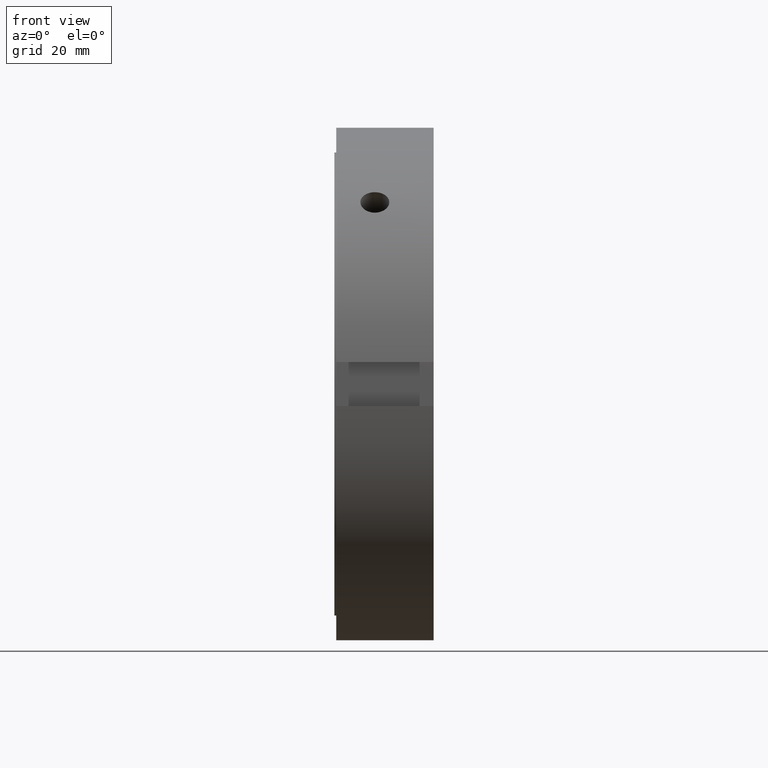
[diagram: clean part render]
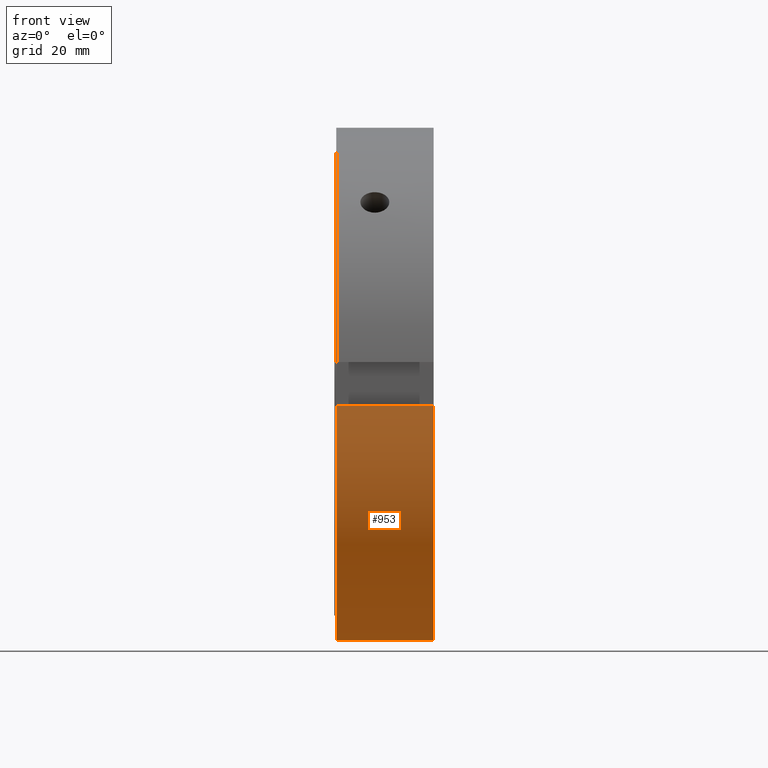
[diagram: same view with one face highlighted and labeled with its STEP entity id]
A machine part, front view. The second image highlights one B-rep face of the part: STEP entity #953.
In plain terms, the highlighted cylindrical surface (partial cylindrical patch) has radius 70 mm, axis along (1, 0, 0).
Its self-contained STEP definition (entity closure, byte-faithful):
#535=CARTESIAN_POINT('',(0.49999999999998,-6.000000000000011,-69.742383096650769));
#536=VERTEX_POINT('',#535);
#551=CARTESIAN_POINT('',(26.999999999999986,-6.000000000000011,-69.742383096650769));
#552=VERTEX_POINT('',#551);
#559=CARTESIAN_POINT('',(0.49999999999998,-6.000000000000011,-69.742383096650769));
#560=DIRECTION('',(1.0,0.0,0.0));
#561=VECTOR('',#560,26.500000000000007);
#562=LINE('',#559,#561);
#563=EDGE_CURVE('',#536,#552,#562,.T.);
#675=CARTESIAN_POINT('',(0.49999999999998,-69.742383096650769,-5.999999999999989));
#676=VERTEX_POINT('',#675);
#685=CARTESIAN_POINT('',(26.999999999999986,-69.742383096650769,-5.999999999999989));
#686=VERTEX_POINT('',#685);
#687=CARTESIAN_POINT('',(26.999999999999986,-69.742383096650769,-5.999999999999989));
#688=DIRECTION('',(-1.0,0.0,0.0));
#689=VECTOR('',#688,26.500000000000007);
#690=LINE('',#687,#689);
#691=EDGE_CURVE('',#686,#676,#690,.T.);
#930=CARTESIAN_POINT('',(13.749999999999982,0.0,0.0));
#931=DIRECTION('',(1.0,0.0,0.0));
#932=DIRECTION('',(0.0,1.0,0.0));
#933=AXIS2_PLACEMENT_3D('',#930,#931,#932);
#934=CYLINDRICAL_SURFACE('',#933,70.0);
#935=ORIENTED_EDGE('',*,*,#563,.T.);
#936=CARTESIAN_POINT('',(26.999999999999986,0.0,0.0));
#937=DIRECTION('',(1.0,0.0,0.0));
#938=DIRECTION('',(0.0,1.0,0.0));
#939=AXIS2_PLACEMENT_3D('',#936,#937,#938);
#940=CIRCLE('',#939,70.0);
#941=EDGE_CURVE('',#686,#552,#940,.T.);
#942=ORIENTED_EDGE('',*,*,#941,.F.);
#943=ORIENTED_EDGE('',*,*,#691,.T.);
#944=CARTESIAN_POINT('',(0.49999999999998,0.0,0.0));
#945=DIRECTION('',(1.0,0.0,0.0));
#946=DIRECTION('',(0.0,1.0,0.0));
#947=AXIS2_PLACEMENT_3D('',#944,#945,#946);
#948=CIRCLE('',#947,70.0);
#949=EDGE_CURVE('',#676,#536,#948,.T.);
#950=ORIENTED_EDGE('',*,*,#949,.T.);
#951=EDGE_LOOP('',(#935,#942,#943,#950));
#952=FACE_OUTER_BOUND('',#951,.T.);
#953=ADVANCED_FACE('',(#952),#934,.T.);